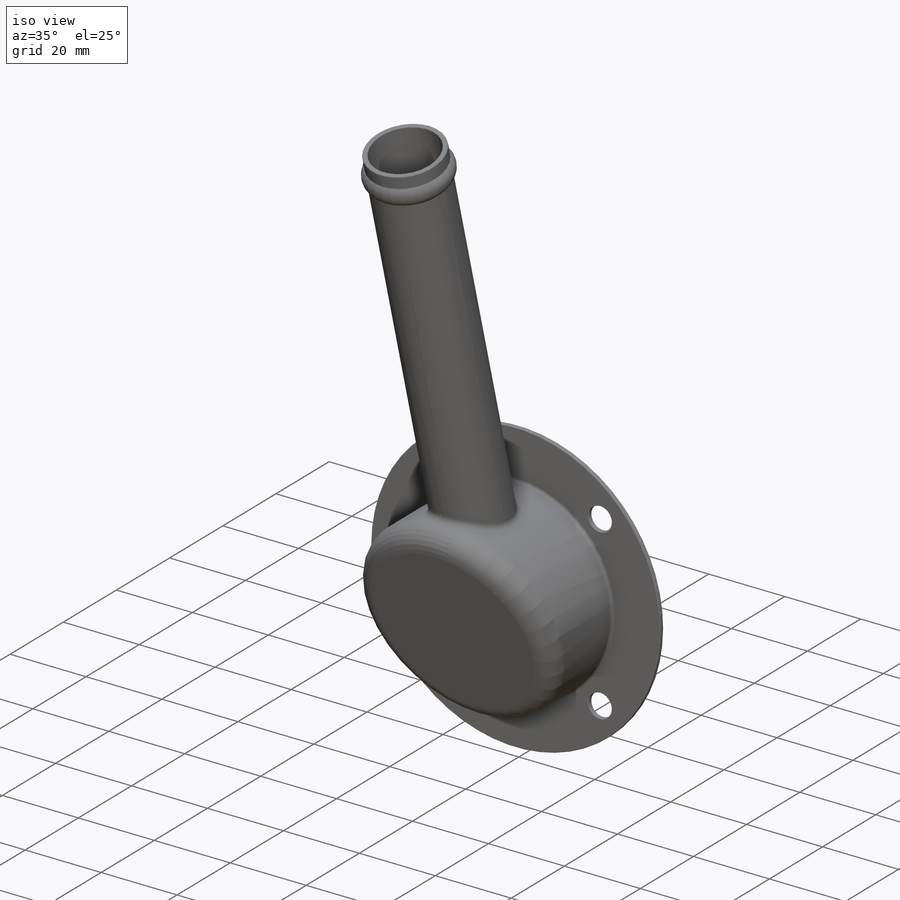
[diagram: iso view]
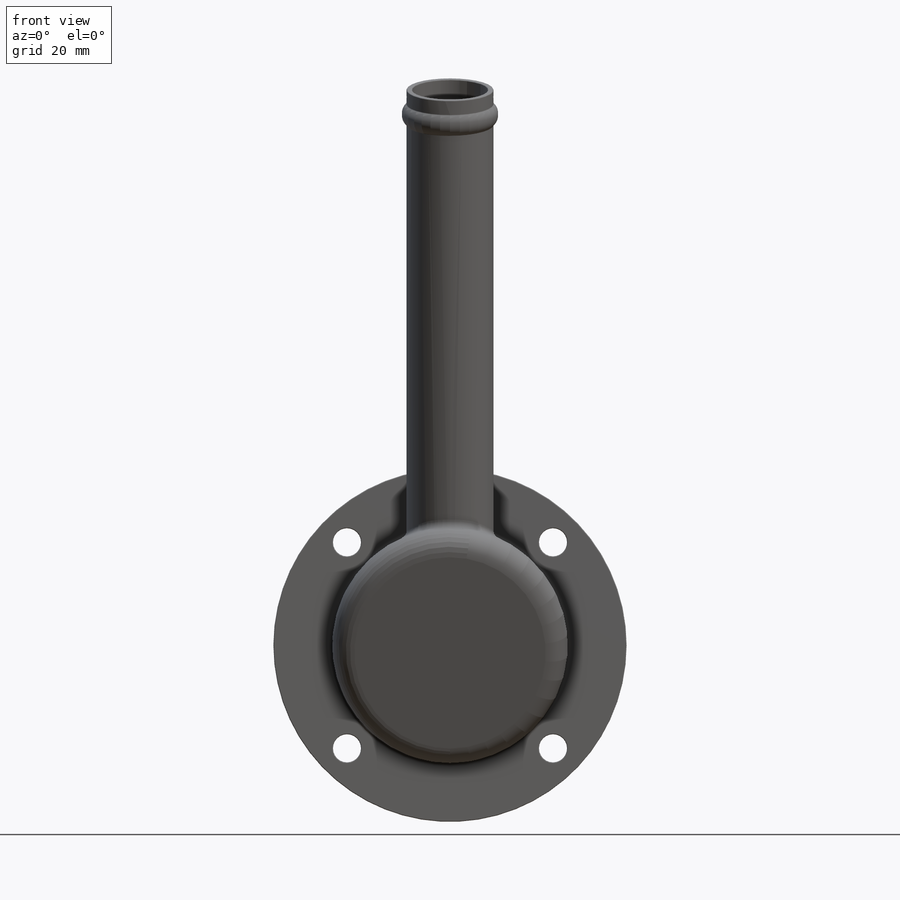
[diagram: front view]
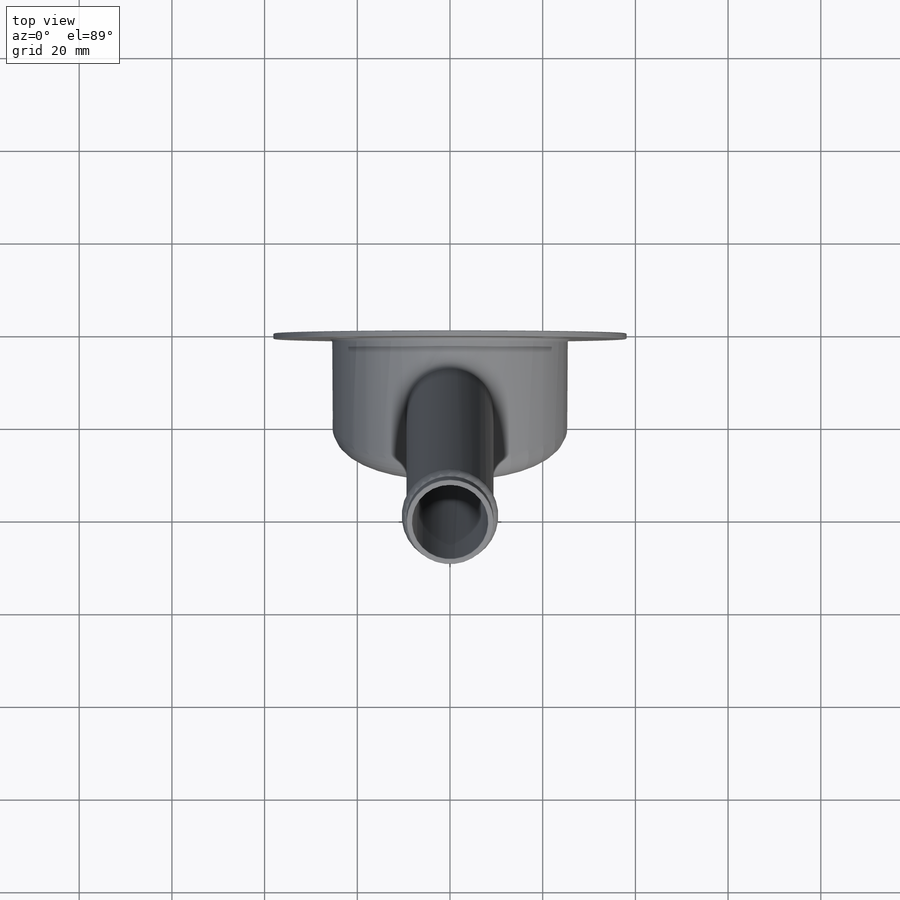
[diagram: top view]
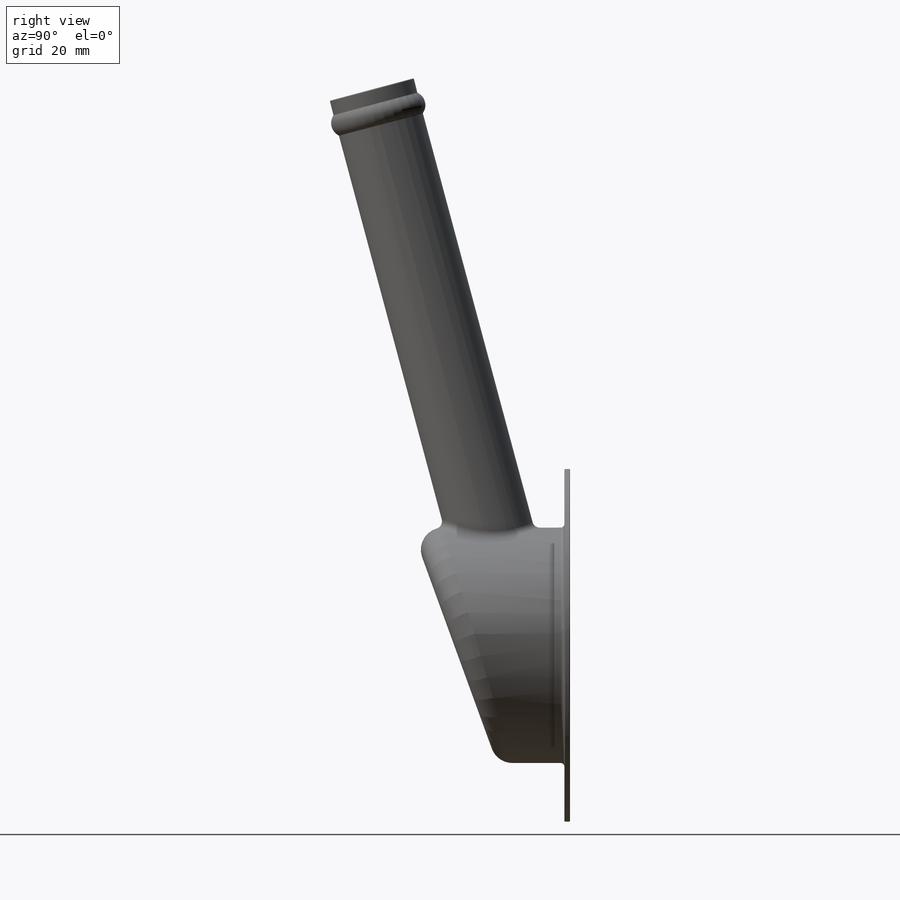
[diagram: right view]
SOLIDWORKS PART (.sldprt)
format: sldprt  version: not decoded by parser v0  size: 431,616 bytes
history: native  units: mm
features: sketch x8, fillet x6, extrude x2, cut_extrude x2, revolve x2, material x1, shell x1 (+16 scaffold rows collapsed)
feature tree (38):
  scaffold x16  (default folders/planes/origin — collapsed)
  material  "Material <not specified>"
  sketch  "Sketch1"  dims[D1=76.2mm]
  extrude  "Extrude1"  Depth=1.2065mm
  sketch  "Sketch4"  dims[D1=50.8mm]
  extrude  "Extrude2"  Depth=33.02mm
  sketch  "Sketch7"  dims[D2=18.8468mm D1=18.8468mm]
  sketch  "Sketch5"  dims[c1.D1=~58.797769mm c2.D1=20.0deg]
  cut_extrude  "Extrude3"  [1 undecoded]
  fillet  "Fillet1"  Radius=4.7625mm
  sketch  "Sketch9"
  sketch  "Sketch10"  dims[c1.D1=~19.100859mm c2.D1=105.0deg c2.D2=124.1552mm c2.D4=16.256mm c2.D3=9.398mm]
  revolve  "Revolve1"  Angle=360deg
  shell  "Shell1"  Thickness=1.2065mm
  sketch  "Sketch11"  dims[D1=3.2512mm D2=4.5466mm D3=~10.43305mm]
  revolve  "Revolve2"  Angle=360deg
  fillet  "Fillet2"  Radius=0.198437mm
  fillet  "Fillet3"  Radius=0.198437mm
  fillet  "Fillet4"  Radius=0.79375mm
  sketch  "Sketch13"  dims[D3=6.0579mm D1=44.45mm D2=44.45mm]
  cut_extrude  "Extrude5"  [1 undecoded]
  fillet  "Fillet6"  Radius=1.5875mm
  fillet  "Fillet7"  Radius=0.198437mm
decode coverage: 18 of 21 modeling features carry decoded parameters
note: ~ marks probable driven/reference dimensions
note: 2 parameter values undecoded
note: suppression state not decoded; provenance and decode notes live in map.json
